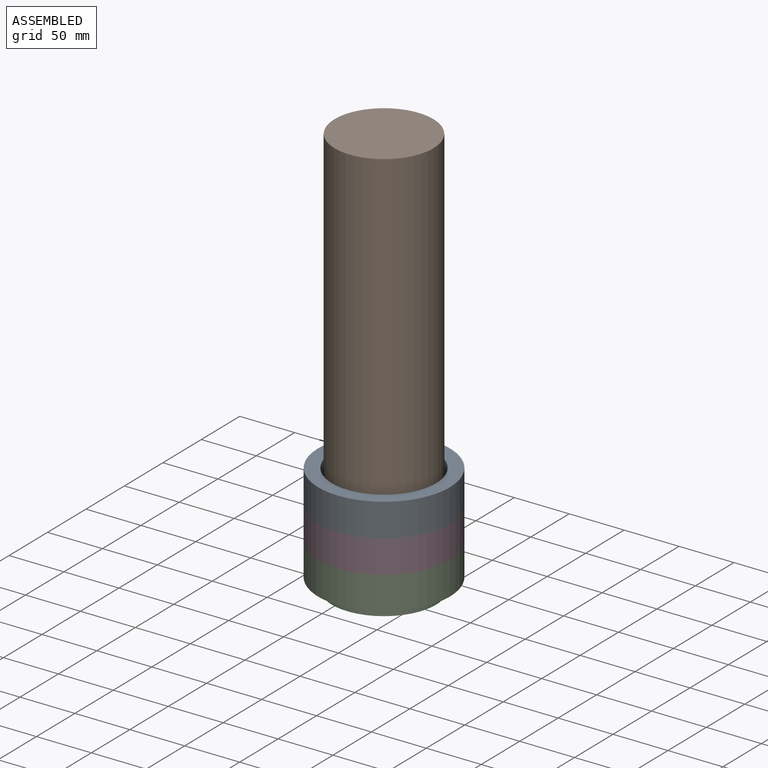
[diagram: assembled view]
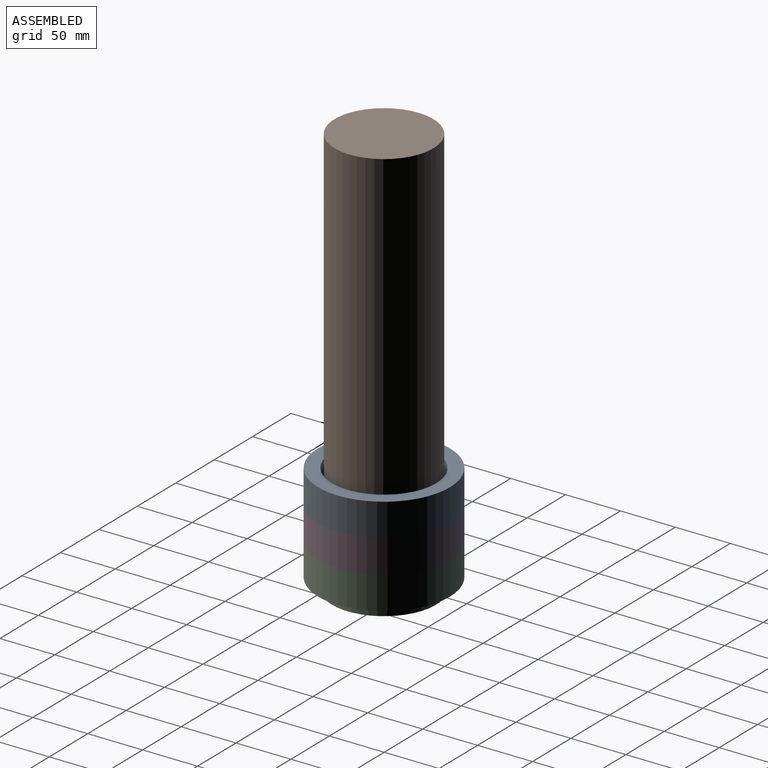
[diagram: assembled view, second angle]
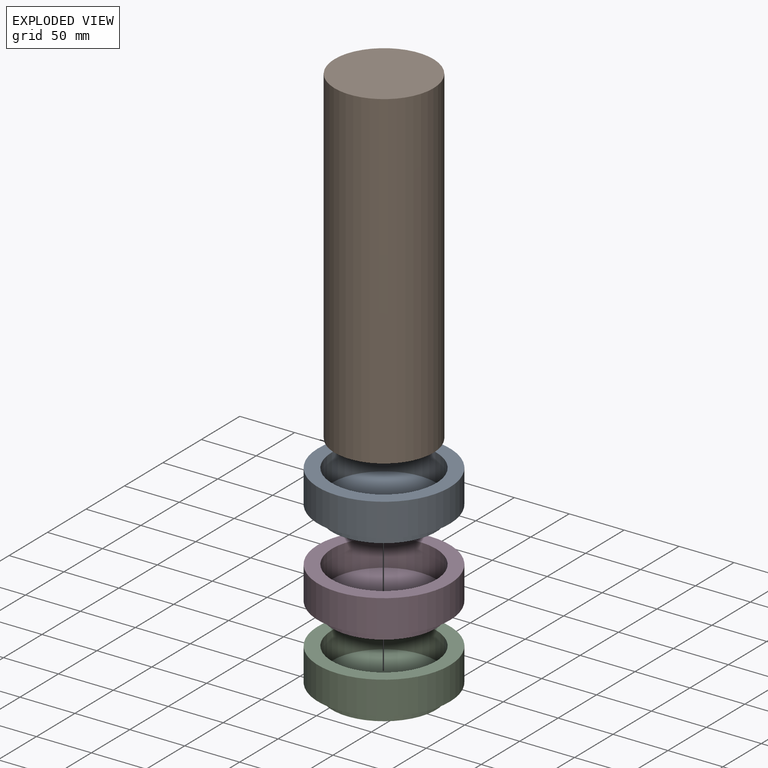
[diagram: exploded view]
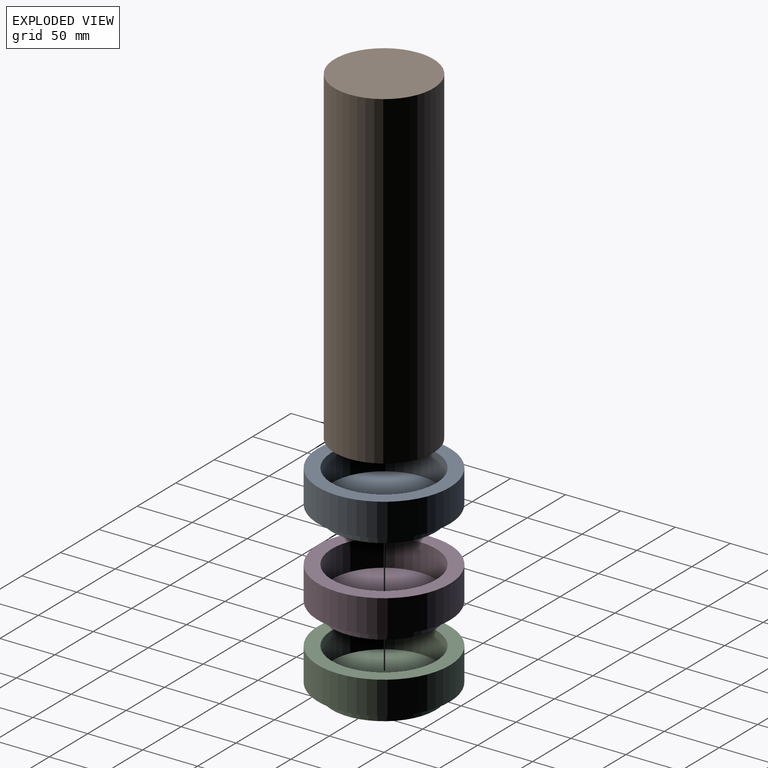
[diagram: exploded view, second angle]
ASSEMBLY  parts=4 mates=3
PART A: 7 faces, bbox 120x120x40 mm
  f0: cylinder r=47.5mm len=95mm, axis (0,0,-1), area 7461.3mm2, adj f2,f6
  f1: cylinder r=60mm len=120mm, axis (0,0,-1), area 11309.7mm2, adj f2,f3
  f2: plane 120x120mm, normal (0,0,1), area 4221.5mm2, adj f0,f1
  f3: plane 120x120mm, normal (0,0,-1), area 4221.5mm2, adj f1,f5
  f4: plane 95x95mm, normal (0,0,-1), area 7088.2mm2, adj f5
  f5: cylinder r=47.5mm len=95mm, axis (0,0,1), area 2984.5mm2, adj f3,f4
  f6: plane 95x95mm, normal (0,0,1), area 7088.2mm2, adj f0
PART B: 3 faces, bbox 90x90x300 mm
  f0: cylinder r=45mm len=300mm, axis (0,0,-1), area 84823mm2, adj f1,f2
  f1: plane 90x90mm, normal (0,0,1), area 6361.7mm2, adj f0
  f2: plane 90x90mm, normal (0,0,-1), area 6361.7mm2, adj f0
PART C: same geometry as A
PART D: same geometry as A
PLACE A t=(-22.74,48.88,-49.49)mm
PLACE B t=(-22.74,48.88,-49.49)mm
PLACE C t=(-22.74,48.88,-109.49)mm
PLACE D t=(-22.74,48.88,-79.49)mm
MATE fastened C.f1 <-> D.f1  axis (0,0,1) through (-22.74,48.88,-84.49)mm
MATE fastened D.f0 <-> A.f1  axis (0,0,1) through (-22.74,48.88,-54.49)mm
MATE fastened A.f0 <-> B.f0  axis (0,0,1) through (-22.74,48.88,-49.49)mm
